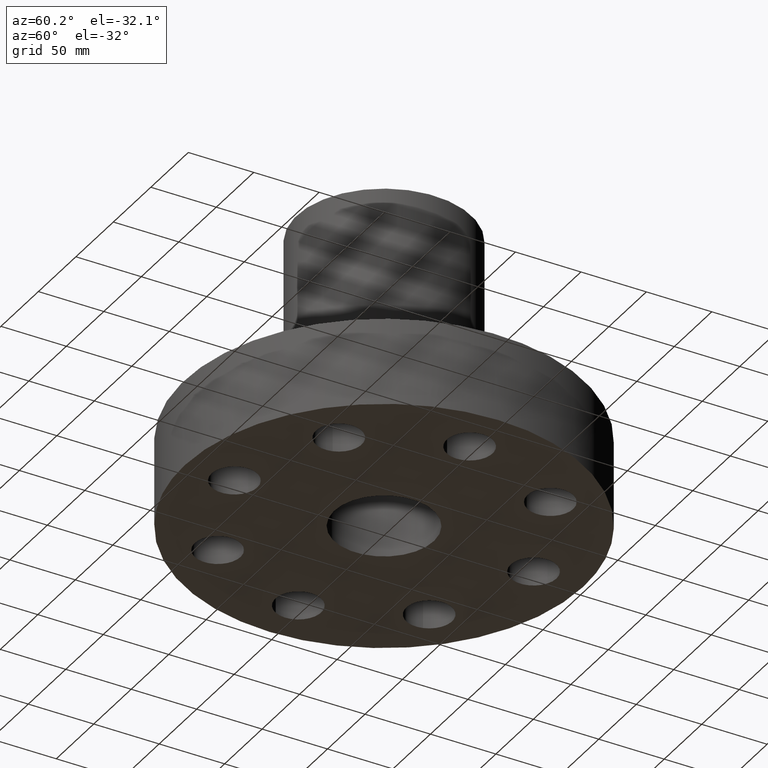
[diagram: clean part render]
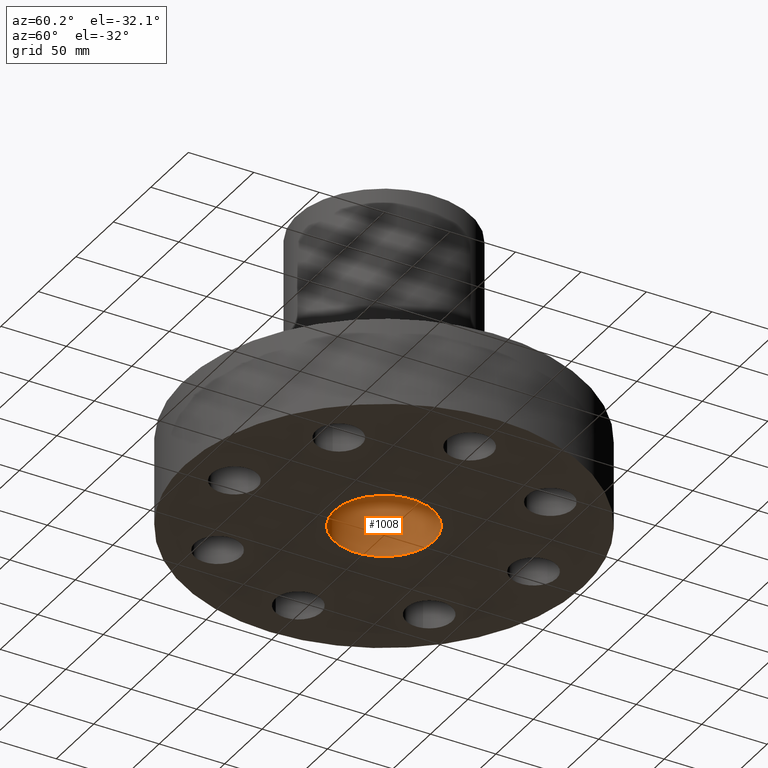
[diagram: same view with one face highlighted and labeled with its STEP entity id]
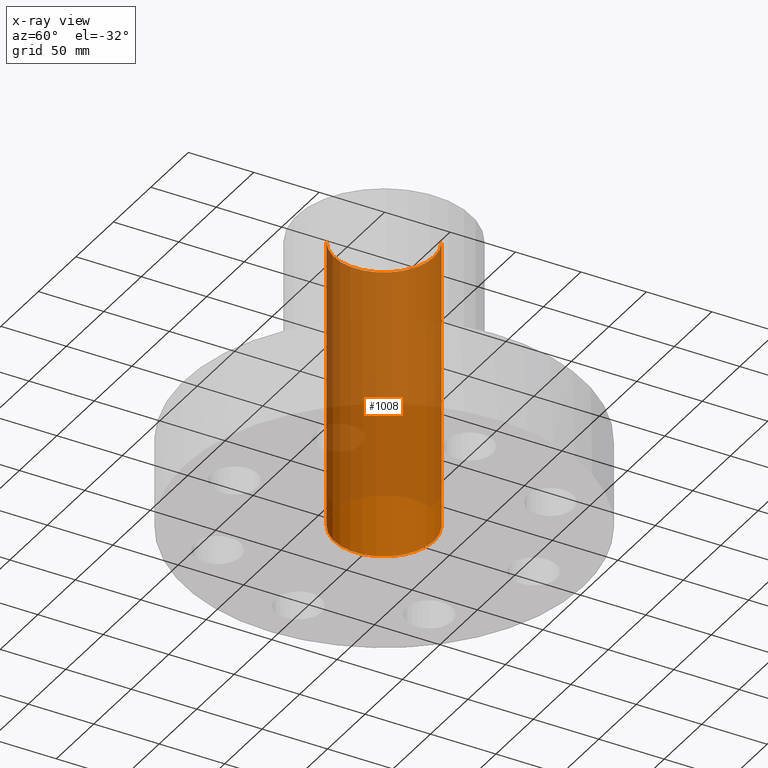
[diagram: x-ray of the same camera — body ghosted, the highlighted face saturated]
A machine part, auxiliary view. The second image highlights one B-rep face of the part: STEP entity #1008.
The next image is the same camera in x-ray: the body ghosted, the highlighted face saturated — about 82% of this face is hidden behind the body in this view.
In plain terms, the highlighted cylindrical surface (partial cylindrical patch) has radius 38.1 mm, axis along (0, 0, -1).
Its self-contained STEP definition (entity closure, byte-faithful):
#770=AXIS2_PLACEMENT_3D('Circle Axis2P3D',#768,#769,$) ;
#969=AXIS2_PLACEMENT_3D('Cylinder Axis2P3D',#966,#967,#968) ;
#999=AXIS2_PLACEMENT_3D('Circle Axis2P3D',#997,#998,$) ;
#768=CARTESIAN_POINT('Axis2P3D Location',(0.,0.,8.75000000003)) ;
#772=CARTESIAN_POINT('Vertex',(-0.719138307909,-1.31637384284,8.75000000004)) ;
#774=CARTESIAN_POINT('Vertex',(0.719138307909,1.31637384284,8.75000000004)) ;
#966=CARTESIAN_POINT('Axis2P3D Location',(0.,0.,4.25000000002)) ;
#975=CARTESIAN_POINT('Vertex',(-0.719138307909,-1.31637384284,0.)) ;
#977=CARTESIAN_POINT('Vertex',(0.719138307909,1.31637384284,0.)) ;
#980=CARTESIAN_POINT('Line Origine',(-0.719138307909,-1.31637384284,4.37500000002)) ;
#985=CARTESIAN_POINT('Line Origine',(0.719138307909,1.31637384284,4.37500000002)) ;
#997=CARTESIAN_POINT('Axis2P3D Location',(0.,0.,0.)) ;
#769=DIRECTION('Axis2P3D Direction',(0.,0.,-0.0393700787402)) ;
#967=DIRECTION('Axis2P3D Direction',(0.,0.,-0.0393700787402)) ;
#968=DIRECTION('Axis2P3D XDirection',(-0.0188750212049,-0.0345504945626,0.)) ;
#981=DIRECTION('Vector Direction',(0.,0.,-0.0393700787402)) ;
#986=DIRECTION('Vector Direction',(0.,0.,-0.0393700787402)) ;
#998=DIRECTION('Axis2P3D Direction',(0.,0.,-0.0393700787402)) ;
#982=VECTOR('Line Direction',#981,0.0393700787402) ;
#987=VECTOR('Line Direction',#986,0.0393700787402) ;
#1003=ORIENTED_EDGE('',*,*,#1001,.F.) ;
#1004=ORIENTED_EDGE('',*,*,#989,.F.) ;
#1005=ORIENTED_EDGE('',*,*,#776,.F.) ;
#1006=ORIENTED_EDGE('',*,*,#984,.T.) ;
#1008=ADVANCED_FACE('PartBody',(#1007),#970,.F.) ;
#771=CIRCLE('generated circle',#770,1.50000000001) ;
#1000=CIRCLE('generated circle',#999,1.50000000001) ;
#970=CYLINDRICAL_SURFACE('generated cylinder',#969,1.50000000001) ;
#776=EDGE_CURVE('',#773,#775,#771,.T.) ;
#984=EDGE_CURVE('',#773,#976,#983,.T.) ;
#989=EDGE_CURVE('',#775,#978,#988,.T.) ;
#1001=EDGE_CURVE('',#978,#976,#1000,.F.) ;
#1002=EDGE_LOOP('',(#1003,#1004,#1005,#1006)) ;
#1007=FACE_OUTER_BOUND('',#1002,.T.) ;
#983=LINE('Line',#980,#982) ;
#988=LINE('Line',#985,#987) ;
#773=VERTEX_POINT('',#772) ;
#775=VERTEX_POINT('',#774) ;
#976=VERTEX_POINT('',#975) ;
#978=VERTEX_POINT('',#977) ;